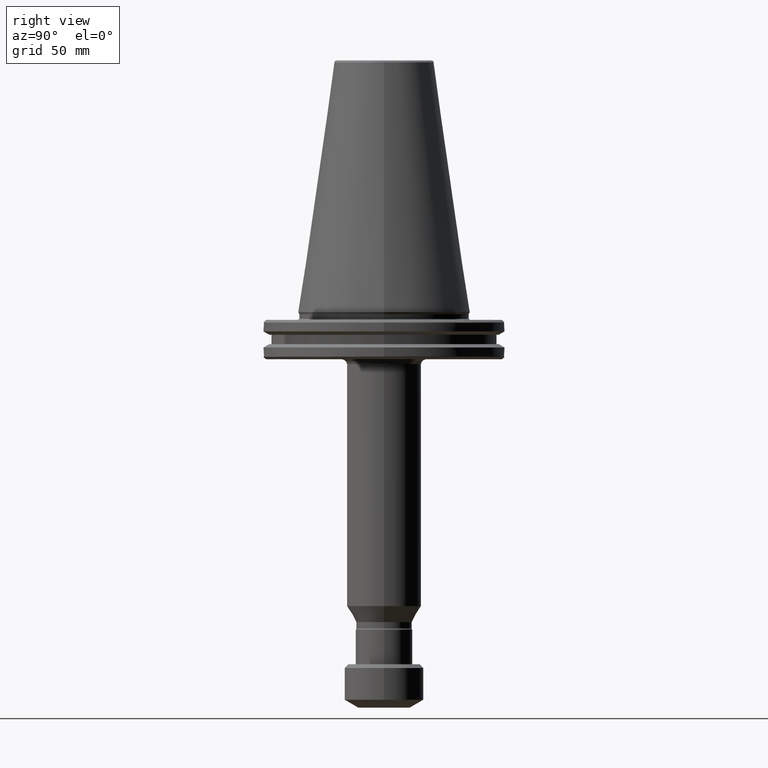
[diagram: clean part render]
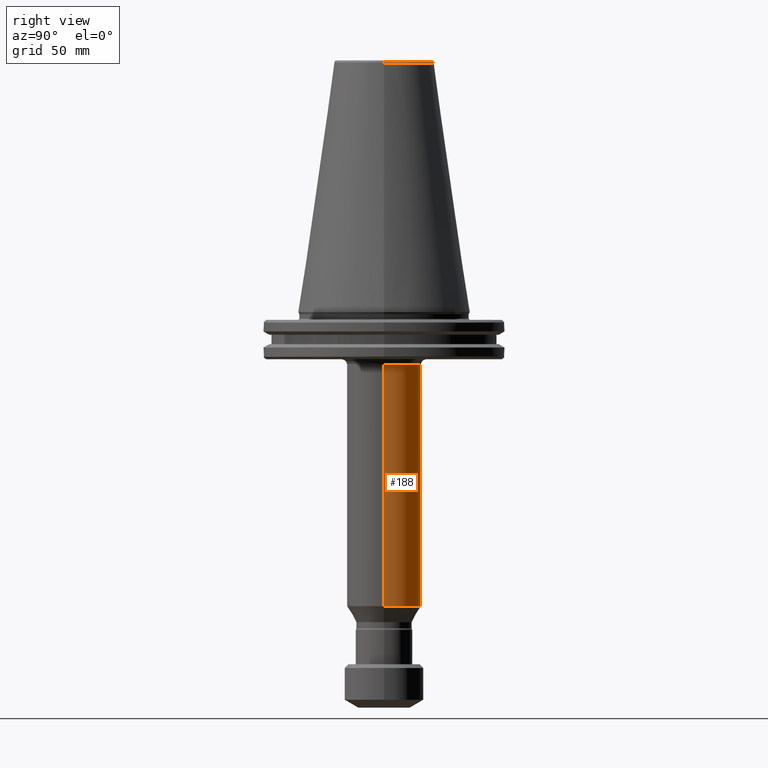
[diagram: same view with one face highlighted and labeled with its STEP entity id]
A machine part, right view. The second image highlights one B-rep face of the part: STEP entity #188.
In plain terms, the highlighted cylindrical surface (partial cylindrical patch) has radius 15 mm, axis along (0, 0, 1).
Its self-contained STEP definition (entity closure, byte-faithful):
#188 = ADVANCED_FACE ( 'NONE', ( #1427 ), #1342, .T. ) ;
#561 = CARTESIAN_POINT ( 'NONE',  ( -14.99999999999999500, 1.836970198721029200E-015, 88.34764052968309000 ) ) ;
#620 = DIRECTION ( 'NONE',  ( 1.000000000000000000, 0.0000000000000000000, 0.0000000000000000000 ) ) ;
#658 = DIRECTION ( 'NONE',  ( -1.000000000000000000, 0.0000000000000000000, 0.0000000000000000000 ) ) ;
#670 = DIRECTION ( 'NONE',  ( 0.0000000000000000000, 0.0000000000000000000, 1.000000000000000000 ) ) ;
#804 = AXIS2_PLACEMENT_3D ( 'NONE', #2485, #906, #2739 ) ;
#850 = ORIENTED_EDGE ( 'NONE', *, *, #2991, .T. ) ;
#905 = LINE ( 'NONE', #3303, #3241 ) ;
#906 = DIRECTION ( 'NONE',  ( 0.0000000000000000000, 0.0000000000000000000, 1.000000000000000000 ) ) ;
#951 = DIRECTION ( 'NONE',  ( 0.0000000000000000000, 0.0000000000000000000, 1.000000000000000000 ) ) ;
#970 = CARTESIAN_POINT ( 'NONE',  ( -15.00000000000000400, 1.836970198721030000E-015, -118.9686827414893700 ) ) ;
#990 = EDGE_CURVE ( 'NONE', #1471, #1045, #1604, .T. ) ;
#1045 = VERTEX_POINT ( 'NONE', #2908 ) ;
#1174 = ORIENTED_EDGE ( 'NONE', *, *, #990, .T. ) ;
#1261 = AXIS2_PLACEMENT_3D ( 'NONE', #2593, #2296, #658 ) ;
#1342 = CYLINDRICAL_SURFACE ( 'NONE', #2649, 14.99999999999999500 ) ;
#1418 = CARTESIAN_POINT ( 'NONE',  ( 0.0000000000000000000, 0.0000000000000000000, 88.34764052968309000 ) ) ;
#1427 = FACE_OUTER_BOUND ( 'NONE', #2886, .T. ) ;
#1471 = VERTEX_POINT ( 'NONE', #2418 ) ;
#1604 = CIRCLE ( 'NONE', #1261, 14.99999999999999300 ) ;
#1624 = ORIENTED_EDGE ( 'NONE', *, *, #2693, .T. ) ;
#1653 = LINE ( 'NONE', #561, #2409 ) ;
#2189 = DIRECTION ( 'NONE',  ( 0.0000000000000000000, 0.0000000000000000000, 1.000000000000000000 ) ) ;
#2296 = DIRECTION ( 'NONE',  ( 0.0000000000000000000, 0.0000000000000000000, -1.000000000000000000 ) ) ;
#2409 = VECTOR ( 'NONE', #2189, 1000.000000000000000 ) ;
#2418 = CARTESIAN_POINT ( 'NONE',  ( -14.99999999999999600, 1.836970198721029600E-015, -21.10000000000000900 ) ) ;
#2485 = CARTESIAN_POINT ( 'NONE',  ( 0.0000000000000000000, 0.0000000000000000000, -118.9686827414893700 ) ) ;
#2593 = CARTESIAN_POINT ( 'NONE',  ( 0.0000000000000000000, 0.0000000000000000000, -21.10000000000000900 ) ) ;
#2649 = AXIS2_PLACEMENT_3D ( 'NONE', #1418, #951, #620 ) ;
#2693 = EDGE_CURVE ( 'NONE', #2924, #3205, #2914, .T. ) ;
#2739 = DIRECTION ( 'NONE',  ( 1.000000000000000000, 0.0000000000000000000, 0.0000000000000000000 ) ) ;
#2850 = EDGE_CURVE ( 'NONE', #2924, #1045, #905, .T. ) ;
#2886 = EDGE_LOOP ( 'NONE', ( #1624, #850, #1174, #3173 ) ) ;
#2908 = CARTESIAN_POINT ( 'NONE',  ( 14.99999999999999600, 0.0000000000000000000, -21.10000000000000900 ) ) ;
#2914 = CIRCLE ( 'NONE', #804, 14.99999999999999500 ) ;
#2924 = VERTEX_POINT ( 'NONE', #3176 ) ;
#2991 = EDGE_CURVE ( 'NONE', #3205, #1471, #1653, .T. ) ;
#3173 = ORIENTED_EDGE ( 'NONE', *, *, #2850, .F. ) ;
#3176 = CARTESIAN_POINT ( 'NONE',  ( 15.00000000000000400, 0.0000000000000000000, -118.9686827414893700 ) ) ;
#3205 = VERTEX_POINT ( 'NONE', #970 ) ;
#3241 = VECTOR ( 'NONE', #670, 1000.000000000000000 ) ;
#3303 = CARTESIAN_POINT ( 'NONE',  ( 14.99999999999999500, 0.0000000000000000000, 88.34764052968309000 ) ) ;